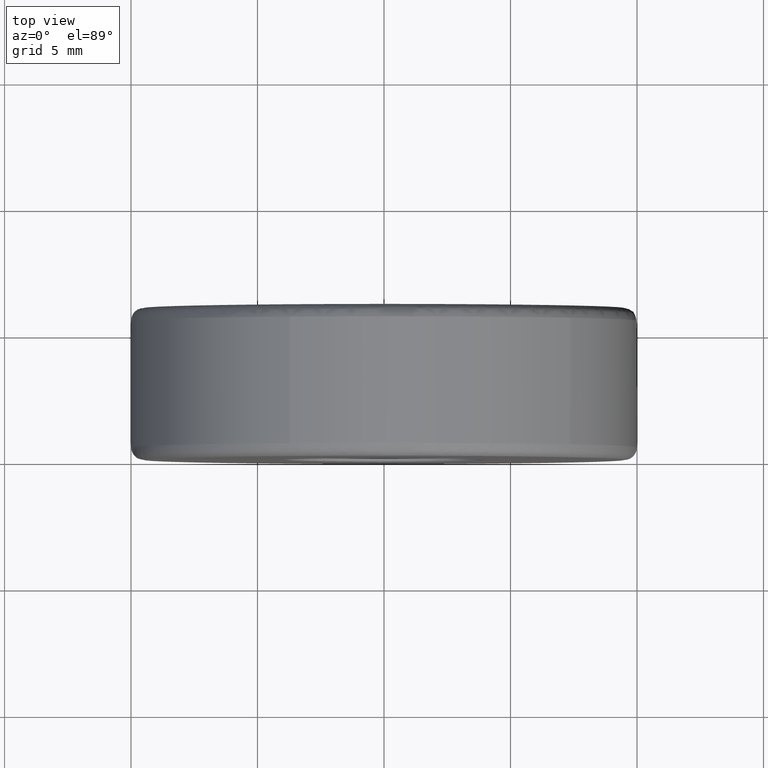
[diagram: clean part render]
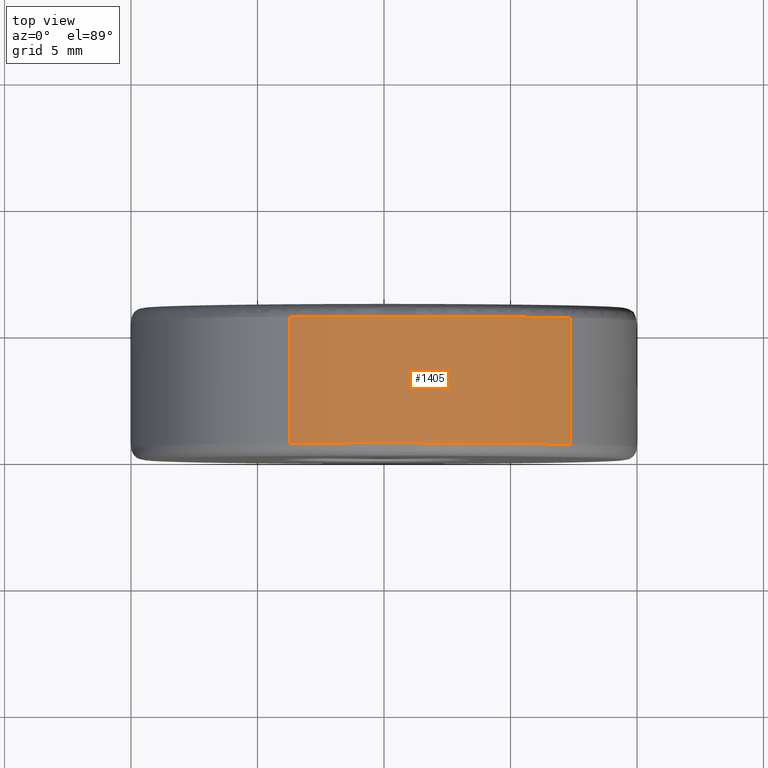
[diagram: same view with one face highlighted and labeled with its STEP entity id]
A machine part, top view. The second image highlights one B-rep face of the part: STEP entity #1405.
In plain terms, the highlighted face is a freeform B-spline surface patch.
Its self-contained STEP definition (entity closure, byte-faithful):
#1186=CARTESIAN_POINT('',(-3.715388797554305,0.499999999997074,9.284173958030651));
#1187=VERTEX_POINT('',#1186);
#1203=CARTESIAN_POINT('',(-3.715388841877617,5.500000000006068,9.284173940292972));
#1204=VERTEX_POINT('',#1203);
#1205=CARTESIAN_POINT('',(-3.715388841877617,5.500000000006068,9.284173940292972));
#1206=CARTESIAN_POINT('',(-3.715388797554305,0.499999999997074,9.284173958030651));
#1207=QUASI_UNIFORM_CURVE('',1,(#1205,#1206),.UNSPECIFIED.,.F.,.U.);
#1208=EDGE_CURVE('',#1204,#1187,#1207,.T.);
#1257=CARTESIAN_POINT('',(7.372773731044375,5.500000000000000,6.755901680073629));
#1258=VERTEX_POINT('',#1257);
#1274=CARTESIAN_POINT('',(7.372773735578271,0.500000000000004,6.755901675125747));
#1275=VERTEX_POINT('',#1274);
#1276=CARTESIAN_POINT('',(7.372773731044375,5.500000000000000,6.755901680073629));
#1277=CARTESIAN_POINT('',(7.372773735578271,0.500000000000004,6.755901675125747));
#1278=QUASI_UNIFORM_CURVE('',1,(#1276,#1277),.UNSPECIFIED.,.F.,.U.);
#1279=EDGE_CURVE('',#1258,#1275,#1278,.T.);
#1331=CARTESIAN_POINT('',(7.372773368101238,5.625000000086769,6.755902076156600));
#1332=CARTESIAN_POINT('',(2.702559601714741,5.625000000086769,11.852546061224926));
#1333=CARTESIAN_POINT('',(-3.715394144084544,5.625000000086769,9.284171818428513));
#1334=CARTESIAN_POINT('',(7.372773368101238,0.371874999957300,6.755902076156600));
#1335=CARTESIAN_POINT('',(2.702559601714741,0.371874999957300,11.852546061224926));
#1336=CARTESIAN_POINT('',(-3.715394144084544,0.371874999957300,9.284171818428513));
#1344=(BOUNDED_SURFACE()B_SPLINE_SURFACE(2,1,((#1331,#1334),(#1332,#1335),(#1333,#1336)),.UNSPECIFIED.,.F.,.F.,.U.)B_SPLINE_SURFACE_WITH_KNOTS((3,3),(2,2),(0.0,12.468867495969411),(0.0,5.253125000129469),.UNSPECIFIED.)GEOMETRIC_REPRESENTATION_ITEM()RATIONAL_B_SPLINE_SURFACE(((1.0,1.0),(0.777401153701776,0.777401153701776),(0.893152553776853,0.893152553776853)))REPRESENTATION_ITEM('')SURFACE());
#1345=CARTESIAN_POINT('',(0.0,0.500000000000000,10.0));
#1346=VERTEX_POINT('',#1345);
#1347=CARTESIAN_POINT('',(0.0,0.500000000000000,10.0));
#1348=CARTESIAN_POINT('',(-1.926651774476132,0.500000000000000,10.0));
#1349=CARTESIAN_POINT('',(-3.715388797554305,0.499999999997074,9.284173958030651));
#1357=(BOUNDED_CURVE()B_SPLINE_CURVE(2,(#1347,#1348,#1349),.UNSPECIFIED.,.F.,.U.)B_SPLINE_CURVE_WITH_KNOTS((3,3),(0.500000000000000,0.563083108910150),.UNSPECIFIED.)CURVE()GEOMETRIC_REPRESENTATION_ITEM()RATIONAL_B_SPLINE_CURVE((1.0,0.926093540714186,0.889485075190697))REPRESENTATION_ITEM(''));
#1358=EDGE_CURVE('',#1346,#1187,#1357,.T.);
#1359=ORIENTED_EDGE('',*,*,#1358,.F.);
#1360=CARTESIAN_POINT('',(7.372773735578271,0.500000000000004,6.755901675125747));
#1361=CARTESIAN_POINT('',(4.400105958164019,0.500000000000000,10.0));
#1362=CARTESIAN_POINT('',(0.0,0.500000000000000,10.0));
#1370=(BOUNDED_CURVE()B_SPLINE_CURVE(2,(#1360,#1361,#1362),.UNSPECIFIED.,.F.,.U.)B_SPLINE_CURVE_WITH_KNOTS((3,3),(0.368415192661570,0.500000000000000),.UNSPECIFIED.)CURVE()GEOMETRIC_REPRESENTATION_ITEM()RATIONAL_B_SPLINE_CURVE((0.853959782865036,0.845838808926797,1.0))REPRESENTATION_ITEM(''));
#1371=EDGE_CURVE('',#1275,#1346,#1370,.T.);
#1372=ORIENTED_EDGE('',*,*,#1371,.F.);
#1373=ORIENTED_EDGE('',*,*,#1279,.F.);
#1374=CARTESIAN_POINT('',(0.0,5.500000000000000,10.0));
#1375=VERTEX_POINT('',#1374);
#1376=CARTESIAN_POINT('',(7.372773731044376,5.500000000000000,6.755901680073629));
#1377=CARTESIAN_POINT('',(4.400105950153688,5.499999999999999,10.0));
#1378=CARTESIAN_POINT('',(0.0,5.500000000000000,10.0));
#1386=(BOUNDED_CURVE()B_SPLINE_CURVE(2,(#1376,#1377,#1378),.UNSPECIFIED.,.F.,.U.)B_SPLINE_CURVE_WITH_KNOTS((3,3),(0.368415192864190,0.500000000000000),.UNSPECIFIED.)CURVE()GEOMETRIC_REPRESENTATION_ITEM()RATIONAL_B_SPLINE_CURVE((0.853959782840026,0.845838809164181,1.0))REPRESENTATION_ITEM(''));
#1387=EDGE_CURVE('',#1258,#1375,#1386,.T.);
#1388=ORIENTED_EDGE('',*,*,#1387,.T.);
#1389=CARTESIAN_POINT('',(0.0,5.500000000000000,10.0));
#1390=CARTESIAN_POINT('',(-1.926651799232513,5.499999999999999,9.999999999999998));
#1391=CARTESIAN_POINT('',(-3.715388841877618,5.500000000006068,9.284173940292972));
#1399=(BOUNDED_CURVE()B_SPLINE_CURVE(2,(#1389,#1390,#1391),.UNSPECIFIED.,.F.,.U.)B_SPLINE_CURVE_WITH_KNOTS((3,3),(0.500000000000000,0.563083109660825),.UNSPECIFIED.)CURVE()GEOMETRIC_REPRESENTATION_ITEM()RATIONAL_B_SPLINE_CURVE((1.0,0.926093539834716,0.889485074319432))REPRESENTATION_ITEM(''));
#1400=EDGE_CURVE('',#1375,#1204,#1399,.T.);
#1401=ORIENTED_EDGE('',*,*,#1400,.T.);
#1402=ORIENTED_EDGE('',*,*,#1208,.T.);
#1403=EDGE_LOOP('',(#1359,#1372,#1373,#1388,#1401,#1402));
#1404=FACE_OUTER_BOUND('',#1403,.T.);
#1405=ADVANCED_FACE('',(#1404),#1344,.T.);